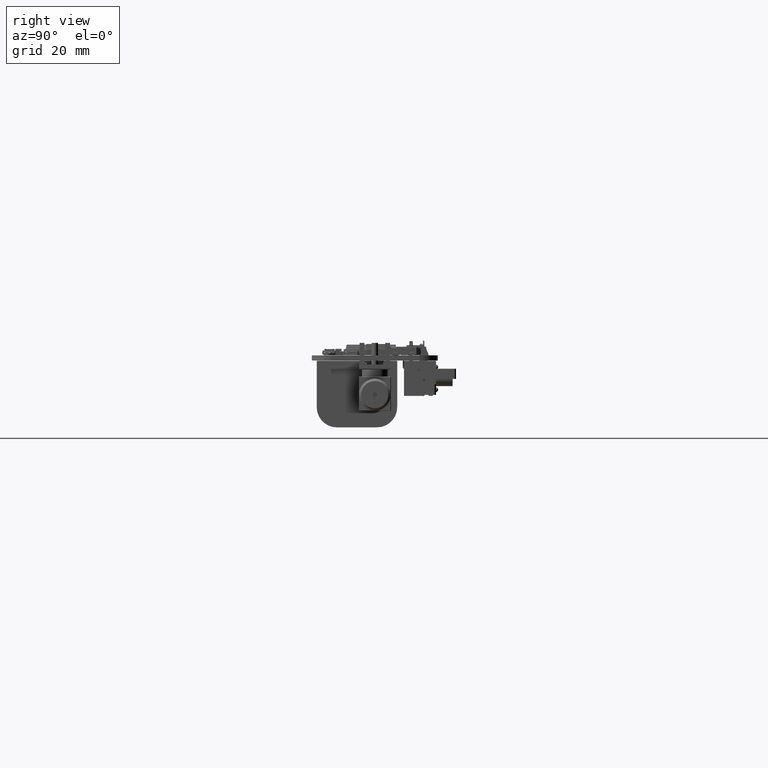
[diagram: clean part render]
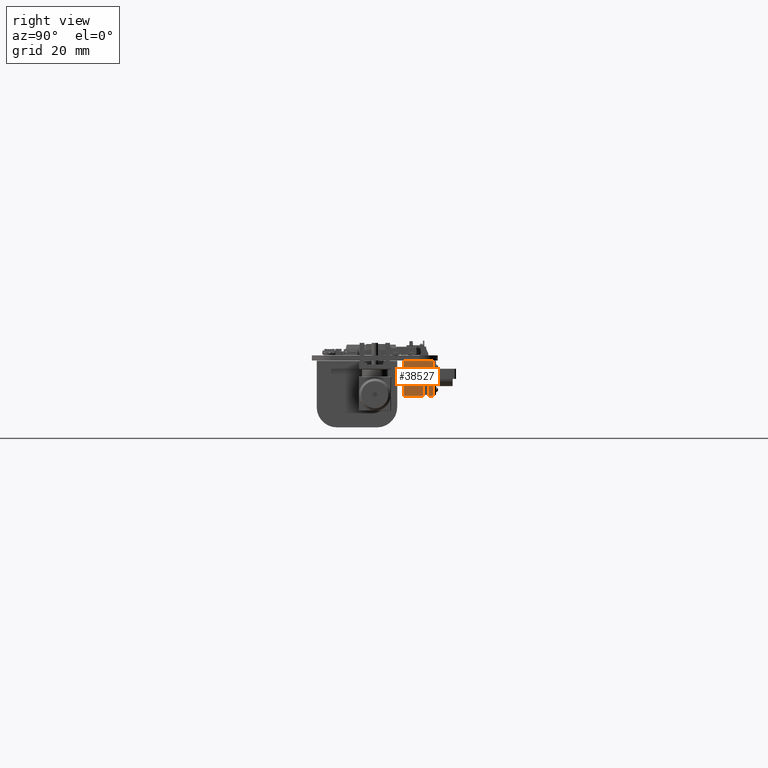
[diagram: same view with one face highlighted and labeled with its STEP entity id]
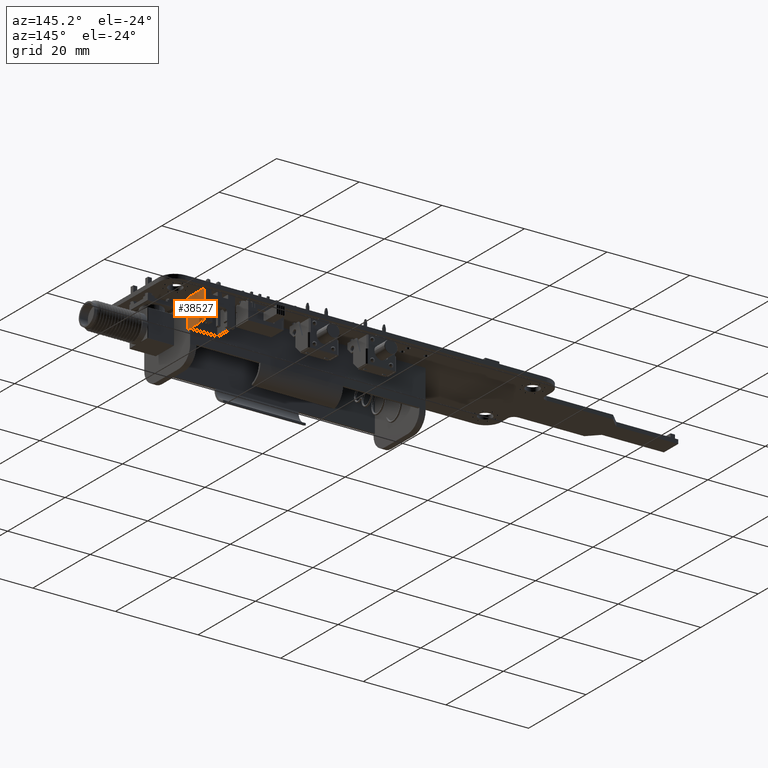
[diagram: same view with one face highlighted and labeled with its STEP entity id]
A machine part, right view. The second image highlights one B-rep face of the part: STEP entity #38527.
A second angle (auxiliary view) of the same face is appended — the face is thin or edge-on in the first view.
In plain terms, the highlighted planar face has unit normal (-1, 0, -0).
Its self-contained STEP definition (entity closure, byte-faithful):
#38149 = VERTEX_POINT('',#38150);
#38150 = CARTESIAN_POINT('',(-2.45,0.5,7.));
#38157 = PLANE('',#38158);
#38158 = AXIS2_PLACEMENT_3D('',#38159,#38160,#38161);
#38159 = CARTESIAN_POINT('',(1.25,-0.525,7.));
#38160 = DIRECTION('',(0.,0.,1.));
#38161 = DIRECTION('',(-1.,1.224646799147E-16,0.));
#38169 = PLANE('',#38170);
#38170 = AXIS2_PLACEMENT_3D('',#38171,#38172,#38173);
#38171 = CARTESIAN_POINT('',(4.95,0.5,3.65));
#38172 = DIRECTION('',(1.224646799147E-16,1.,0.));
#38173 = DIRECTION('',(0.,-0.,1.));
#38181 = EDGE_CURVE('',#38149,#38182,#38184,.T.);
#38182 = VERTEX_POINT('',#38183);
#38183 = CARTESIAN_POINT('',(-2.45,-3.4,7.));
#38184 = SURFACE_CURVE('',#38185,(#38189,#38196),.PCURVE_S1.);
#38185 = LINE('',#38186,#38187);
#38186 = CARTESIAN_POINT('',(-2.45,2.35,7.));
#38187 = VECTOR('',#38188,1.);
#38188 = DIRECTION('',(-1.224646799147E-16,-1.,0.));
#38189 = PCURVE('',#38157,#38190);
#38190 = DEFINITIONAL_REPRESENTATION('',(#38191),#38195);
#38191 = LINE('',#38192,#38193);
#38192 = CARTESIAN_POINT('',(3.7,-2.875));
#38193 = VECTOR('',#38194,1.);
#38194 = DIRECTION('',(0.,1.));
#38195 = ( GEOMETRIC_REPRESENTATION_CONTEXT(2) 
PARAMETRIC_REPRESENTATION_CONTEXT() REPRESENTATION_CONTEXT('2D SPACE',''
  ) );
#38196 = PCURVE('',#38197,#38202);
#38197 = PLANE('',#38198);
#38198 = AXIS2_PLACEMENT_3D('',#38199,#38200,#38201);
#38199 = CARTESIAN_POINT('',(-2.45,2.35,0.));
#38200 = DIRECTION('',(1.,-1.224646799147E-16,0.));
#38201 = DIRECTION('',(-1.224646799147E-16,-1.,0.));
#38202 = DEFINITIONAL_REPRESENTATION('',(#38203),#38207);
#38203 = LINE('',#38204,#38205);
#38204 = CARTESIAN_POINT('',(0.,-7.));
#38205 = VECTOR('',#38206,1.);
#38206 = DIRECTION('',(1.,0.));
#38207 = ( GEOMETRIC_REPRESENTATION_CONTEXT(2) 
PARAMETRIC_REPRESENTATION_CONTEXT() REPRESENTATION_CONTEXT('2D SPACE',''
  ) );
#38225 = PLANE('',#38226);
#38226 = AXIS2_PLACEMENT_3D('',#38227,#38228,#38229);
#38227 = CARTESIAN_POINT('',(-2.45,-3.4,0.));
#38228 = DIRECTION('',(1.224646799147E-16,1.,0.));
#38229 = DIRECTION('',(1.,-1.224646799147E-16,0.));
#38409 = VERTEX_POINT('',#38410);
#38410 = CARTESIAN_POINT('',(-2.45,0.5,3.65));
#38424 = PLANE('',#38425);
#38425 = AXIS2_PLACEMENT_3D('',#38426,#38427,#38428);
#38426 = CARTESIAN_POINT('',(4.95,1.,3.65));
#38427 = DIRECTION('',(0.,0.,1.));
#38428 = DIRECTION('',(-1.224646799147E-16,-1.,0.));
#38436 = EDGE_CURVE('',#38409,#38149,#38437,.T.);
#38437 = SURFACE_CURVE('',#38438,(#38442,#38449),.PCURVE_S1.);
#38438 = LINE('',#38439,#38440);
#38439 = CARTESIAN_POINT('',(-2.45,0.5,1.825));
#38440 = VECTOR('',#38441,1.);
#38441 = DIRECTION('',(0.,0.,1.));
#38442 = PCURVE('',#38169,#38443);
#38443 = DEFINITIONAL_REPRESENTATION('',(#38444),#38448);
#38444 = LINE('',#38445,#38446);
#38445 = CARTESIAN_POINT('',(-1.825,-7.4));
#38446 = VECTOR('',#38447,1.);
#38447 = DIRECTION('',(1.,0.));
#38448 = ( GEOMETRIC_REPRESENTATION_CONTEXT(2) 
PARAMETRIC_REPRESENTATION_CONTEXT() REPRESENTATION_CONTEXT('2D SPACE',''
  ) );
#38449 = PCURVE('',#38197,#38450);
#38450 = DEFINITIONAL_REPRESENTATION('',(#38451),#38455);
#38451 = LINE('',#38452,#38453);
#38452 = CARTESIAN_POINT('',(1.85,-1.825));
#38453 = VECTOR('',#38454,1.);
#38454 = DIRECTION('',(0.,-1.));
#38455 = ( GEOMETRIC_REPRESENTATION_CONTEXT(2) 
PARAMETRIC_REPRESENTATION_CONTEXT() REPRESENTATION_CONTEXT('2D SPACE',''
  ) );
#38527 = ADVANCED_FACE('',(#38528),#38197,.F.);
#38528 = FACE_BOUND('',#38529,.F.);
#38529 = EDGE_LOOP('',(#38530,#38560,#38588,#38616,#38644,#38673,#38694,
    #38695,#38696));
#38530 = ORIENTED_EDGE('',*,*,#38531,.F.);
#38531 = EDGE_CURVE('',#38532,#38534,#38536,.T.);
#38532 = VERTEX_POINT('',#38533);
#38533 = CARTESIAN_POINT('',(-2.45,2.35,0.));
#38534 = VERTEX_POINT('',#38535);
#38535 = CARTESIAN_POINT('',(-2.45,-3.4,0.));
#38536 = SURFACE_CURVE('',#38537,(#38541,#38548),.PCURVE_S1.);
#38537 = LINE('',#38538,#38539);
#38538 = CARTESIAN_POINT('',(-2.45,2.35,0.));
#38539 = VECTOR('',#38540,1.);
#38540 = DIRECTION('',(-1.224646799147E-16,-1.,0.));
#38541 = PCURVE('',#38197,#38542);
#38542 = DEFINITIONAL_REPRESENTATION('',(#38543),#38547);
#38543 = LINE('',#38544,#38545);
#38544 = CARTESIAN_POINT('',(0.,0.));
#38545 = VECTOR('',#38546,1.);
#38546 = DIRECTION('',(1.,0.));
#38547 = ( GEOMETRIC_REPRESENTATION_CONTEXT(2) 
PARAMETRIC_REPRESENTATION_CONTEXT() REPRESENTATION_CONTEXT('2D SPACE',''
  ) );
#38548 = PCURVE('',#38549,#38554);
#38549 = PLANE('',#38550);
#38550 = AXIS2_PLACEMENT_3D('',#38551,#38552,#38553);
#38551 = CARTESIAN_POINT('',(1.25,-0.525,0.));
#38552 = DIRECTION('',(0.,0.,1.));
#38553 = DIRECTION('',(-1.,1.224646799147E-16,0.));
#38554 = DEFINITIONAL_REPRESENTATION('',(#38555),#38559);
#38555 = LINE('',#38556,#38557);
#38556 = CARTESIAN_POINT('',(3.7,-2.875));
#38557 = VECTOR('',#38558,1.);
#38558 = DIRECTION('',(0.,1.));
#38559 = ( GEOMETRIC_REPRESENTATION_CONTEXT(2) 
PARAMETRIC_REPRESENTATION_CONTEXT() REPRESENTATION_CONTEXT('2D SPACE',''
  ) );
#38560 = ORIENTED_EDGE('',*,*,#38561,.T.);
#38561 = EDGE_CURVE('',#38532,#38562,#38564,.T.);
#38562 = VERTEX_POINT('',#38563);
#38563 = CARTESIAN_POINT('',(-2.45,2.35,7.));
#38564 = SURFACE_CURVE('',#38565,(#38569,#38576),.PCURVE_S1.);
#38565 = LINE('',#38566,#38567);
#38566 = CARTESIAN_POINT('',(-2.45,2.35,0.));
#38567 = VECTOR('',#38568,1.);
#38568 = DIRECTION('',(0.,0.,1.));
#38569 = PCURVE('',#38197,#38570);
#38570 = DEFINITIONAL_REPRESENTATION('',(#38571),#38575);
#38571 = LINE('',#38572,#38573);
#38572 = CARTESIAN_POINT('',(0.,0.));
#38573 = VECTOR('',#38574,1.);
#38574 = DIRECTION('',(0.,-1.));
#38575 = ( GEOMETRIC_REPRESENTATION_CONTEXT(2) 
PARAMETRIC_REPRESENTATION_CONTEXT() REPRESENTATION_CONTEXT('2D SPACE',''
  ) );
#38576 = PCURVE('',#38577,#38582);
#38577 = PLANE('',#38578);
#38578 = AXIS2_PLACEMENT_3D('',#38579,#38580,#38581);
#38579 = CARTESIAN_POINT('',(4.95,2.35,0.));
#38580 = DIRECTION('',(-1.224646799147E-16,-1.,0.));
#38581 = DIRECTION('',(-1.,1.224646799147E-16,0.));
#38582 = DEFINITIONAL_REPRESENTATION('',(#38583),#38587);
#38583 = LINE('',#38584,#38585);
#38584 = CARTESIAN_POINT('',(7.4,0.));
#38585 = VECTOR('',#38586,1.);
#38586 = DIRECTION('',(0.,-1.));
#38587 = ( GEOMETRIC_REPRESENTATION_CONTEXT(2) 
PARAMETRIC_REPRESENTATION_CONTEXT() REPRESENTATION_CONTEXT('2D SPACE',''
  ) );
#38588 = ORIENTED_EDGE('',*,*,#38589,.T.);
#38589 = EDGE_CURVE('',#38562,#38590,#38592,.T.);
#38590 = VERTEX_POINT('',#38591);
#38591 = CARTESIAN_POINT('',(-2.45,1.5,7.));
#38592 = SURFACE_CURVE('',#38593,(#38597,#38604),.PCURVE_S1.);
#38593 = LINE('',#38594,#38595);
#38594 = CARTESIAN_POINT('',(-2.45,2.35,7.));
#38595 = VECTOR('',#38596,1.);
#38596 = DIRECTION('',(-1.224646799147E-16,-1.,0.));
#38597 = PCURVE('',#38197,#38598);
#38598 = DEFINITIONAL_REPRESENTATION('',(#38599),#38603);
#38599 = LINE('',#38600,#38601);
#38600 = CARTESIAN_POINT('',(0.,-7.));
#38601 = VECTOR('',#38602,1.);
#38602 = DIRECTION('',(1.,0.));
#38603 = ( GEOMETRIC_REPRESENTATION_CONTEXT(2) 
PARAMETRIC_REPRESENTATION_CONTEXT() REPRESENTATION_CONTEXT('2D SPACE',''
  ) );
#38604 = PCURVE('',#38605,#38610);
#38605 = PLANE('',#38606);
#38606 = AXIS2_PLACEMENT_3D('',#38607,#38608,#38609);
#38607 = CARTESIAN_POINT('',(1.25,-0.525,7.));
#38608 = DIRECTION('',(0.,0.,1.));
#38609 = DIRECTION('',(-1.,1.224646799147E-16,0.));
#38610 = DEFINITIONAL_REPRESENTATION('',(#38611),#38615);
#38611 = LINE('',#38612,#38613);
#38612 = CARTESIAN_POINT('',(3.7,-2.875));
#38613 = VECTOR('',#38614,1.);
#38614 = DIRECTION('',(0.,1.));
#38615 = ( GEOMETRIC_REPRESENTATION_CONTEXT(2) 
PARAMETRIC_REPRESENTATION_CONTEXT() REPRESENTATION_CONTEXT('2D SPACE',''
  ) );
#38616 = ORIENTED_EDGE('',*,*,#38617,.T.);
#38617 = EDGE_CURVE('',#38590,#38618,#38620,.T.);
#38618 = VERTEX_POINT('',#38619);
#38619 = CARTESIAN_POINT('',(-2.45,1.5,4.15));
#38620 = SURFACE_CURVE('',#38621,(#38625,#38632),.PCURVE_S1.);
#38621 = LINE('',#38622,#38623);
#38622 = CARTESIAN_POINT('',(-2.45,1.5,3.5));
#38623 = VECTOR('',#38624,1.);
#38624 = DIRECTION('',(-0.,0.,-1.));
#38625 = PCURVE('',#38197,#38626);
#38626 = DEFINITIONAL_REPRESENTATION('',(#38627),#38631);
#38627 = LINE('',#38628,#38629);
#38628 = CARTESIAN_POINT('',(0.85,-3.5));
#38629 = VECTOR('',#38630,1.);
#38630 = DIRECTION('',(-0.,1.));
#38631 = ( GEOMETRIC_REPRESENTATION_CONTEXT(2) 
PARAMETRIC_REPRESENTATION_CONTEXT() REPRESENTATION_CONTEXT('2D SPACE',''
  ) );
#38632 = PCURVE('',#38633,#38638);
#38633 = PLANE('',#38634);
#38634 = AXIS2_PLACEMENT_3D('',#38635,#38636,#38637);
#38635 = CARTESIAN_POINT('',(1.25,1.5,4.58077689243));
#38636 = DIRECTION('',(-1.224646799147E-16,-1.,-8.387236609414E-17));
#38637 = DIRECTION('',(-1.027140246741E-32,-8.387236609414E-17,1.));
#38638 = DEFINITIONAL_REPRESENTATION('',(#38639),#38643);
#38639 = LINE('',#38640,#38641);
#38640 = CARTESIAN_POINT('',(-1.08077689243,3.7));
#38641 = VECTOR('',#38642,1.);
#38642 = DIRECTION('',(-1.,2.606907787636E-45));
#38643 = ( GEOMETRIC_REPRESENTATION_CONTEXT(2) 
PARAMETRIC_REPRESENTATION_CONTEXT() REPRESENTATION_CONTEXT('2D SPACE',''
  ) );
#38644 = ORIENTED_EDGE('',*,*,#38645,.F.);
#38645 = EDGE_CURVE('',#38646,#38618,#38648,.T.);
#38646 = VERTEX_POINT('',#38647);
#38647 = CARTESIAN_POINT('',(-2.45,1.,3.65));
#38648 = SURFACE_CURVE('',#38649,(#38654,#38661),.PCURVE_S1.);
#38649 = CIRCLE('',#38650,0.5);
#38650 = AXIS2_PLACEMENT_3D('',#38651,#38652,#38653);
#38651 = CARTESIAN_POINT('',(-2.45,1.,4.15));
#38652 = DIRECTION('',(1.,-1.224646799147E-16,0.));
#38653 = DIRECTION('',(1.224646799147E-16,1.,0.));
#38654 = PCURVE('',#38197,#38655);
#38655 = DEFINITIONAL_REPRESENTATION('',(#38656),#38660);
#38656 = CIRCLE('',#38657,0.5);
#38657 = AXIS2_PLACEMENT_2D('',#38658,#38659);
#38658 = CARTESIAN_POINT('',(1.35,-4.15));
#38659 = DIRECTION('',(-1.,0.));
#38660 = ( GEOMETRIC_REPRESENTATION_CONTEXT(2) 
PARAMETRIC_REPRESENTATION_CONTEXT() REPRESENTATION_CONTEXT('2D SPACE',''
  ) );
#38661 = PCURVE('',#38662,#38667);
#38662 = CYLINDRICAL_SURFACE('',#38663,0.5);
#38663 = AXIS2_PLACEMENT_3D('',#38664,#38665,#38666);
#38664 = CARTESIAN_POINT('',(4.95,1.,4.15));
#38665 = DIRECTION('',(1.,-1.224646799147E-16,-0.));
#38666 = DIRECTION('',(1.224646799147E-16,1.,0.));
#38667 = DEFINITIONAL_REPRESENTATION('',(#38668),#38672);
#38668 = LINE('',#38669,#38670);
#38669 = CARTESIAN_POINT('',(-1.7763568394E-15,-7.4));
#38670 = VECTOR('',#38671,1.);
#38671 = DIRECTION('',(1.,0.));
#38672 = ( GEOMETRIC_REPRESENTATION_CONTEXT(2) 
PARAMETRIC_REPRESENTATION_CONTEXT() REPRESENTATION_CONTEXT('2D SPACE',''
  ) );
#38673 = ORIENTED_EDGE('',*,*,#38674,.T.);
#38674 = EDGE_CURVE('',#38646,#38409,#38675,.T.);
#38675 = SURFACE_CURVE('',#38676,(#38680,#38687),.PCURVE_S1.);
#38676 = LINE('',#38677,#38678);
#38677 = CARTESIAN_POINT('',(-2.45,1.675,3.65));
#38678 = VECTOR('',#38679,1.);
#38679 = DIRECTION('',(-1.224646799147E-16,-1.,0.));
#38680 = PCURVE('',#38197,#38681);
#38681 = DEFINITIONAL_REPRESENTATION('',(#38682),#38686);
#38682 = LINE('',#38683,#38684);
#38683 = CARTESIAN_POINT('',(0.675,-3.65));
#38684 = VECTOR('',#38685,1.);
#38685 = DIRECTION('',(1.,0.));
#38686 = ( GEOMETRIC_REPRESENTATION_CONTEXT(2) 
PARAMETRIC_REPRESENTATION_CONTEXT() REPRESENTATION_CONTEXT('2D SPACE',''
  ) );
#38687 = PCURVE('',#38424,#38688);
#38688 = DEFINITIONAL_REPRESENTATION('',(#38689),#38693);
#38689 = LINE('',#38690,#38691);
#38690 = CARTESIAN_POINT('',(-0.675,-7.4));
#38691 = VECTOR('',#38692,1.);
#38692 = DIRECTION('',(1.,0.));
#38693 = ( GEOMETRIC_REPRESENTATION_CONTEXT(2) 
PARAMETRIC_REPRESENTATION_CONTEXT() REPRESENTATION_CONTEXT('2D SPACE',''
  ) );
#38694 = ORIENTED_EDGE('',*,*,#38436,.T.);
#38695 = ORIENTED_EDGE('',*,*,#38181,.T.);
#38696 = ORIENTED_EDGE('',*,*,#38697,.F.);
#38697 = EDGE_CURVE('',#38534,#38182,#38698,.T.);
#38698 = SURFACE_CURVE('',#38699,(#38703,#38710),.PCURVE_S1.);
#38699 = LINE('',#38700,#38701);
#38700 = CARTESIAN_POINT('',(-2.45,-3.4,0.));
#38701 = VECTOR('',#38702,1.);
#38702 = DIRECTION('',(0.,0.,1.));
#38703 = PCURVE('',#38197,#38704);
#38704 = DEFINITIONAL_REPRESENTATION('',(#38705),#38709);
#38705 = LINE('',#38706,#38707);
#38706 = CARTESIAN_POINT('',(5.75,0.));
#38707 = VECTOR('',#38708,1.);
#38708 = DIRECTION('',(0.,-1.));
#38709 = ( GEOMETRIC_REPRESENTATION_CONTEXT(2) 
PARAMETRIC_REPRESENTATION_CONTEXT() REPRESENTATION_CONTEXT('2D SPACE',''
  ) );
#38710 = PCURVE('',#38225,#38711);
#38711 = DEFINITIONAL_REPRESENTATION('',(#38712),#38716);
#38712 = LINE('',#38713,#38714);
#38713 = CARTESIAN_POINT('',(0.,0.));
#38714 = VECTOR('',#38715,1.);
#38715 = DIRECTION('',(0.,-1.));
#38716 = ( GEOMETRIC_REPRESENTATION_CONTEXT(2) 
PARAMETRIC_REPRESENTATION_CONTEXT() REPRESENTATION_CONTEXT('2D SPACE',''
  ) );